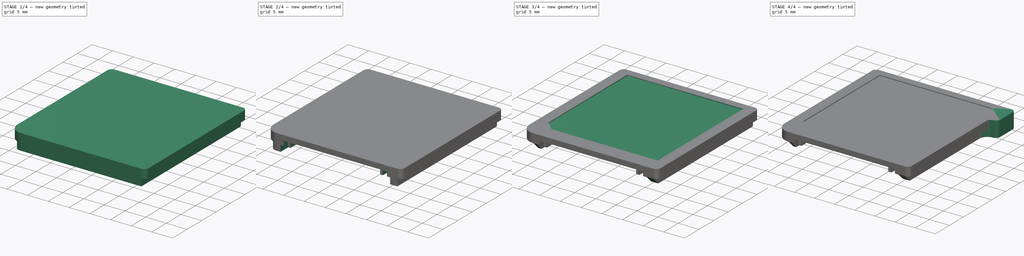
[diagram: build sequence overview — one tinted view per stage of 4, left to right]
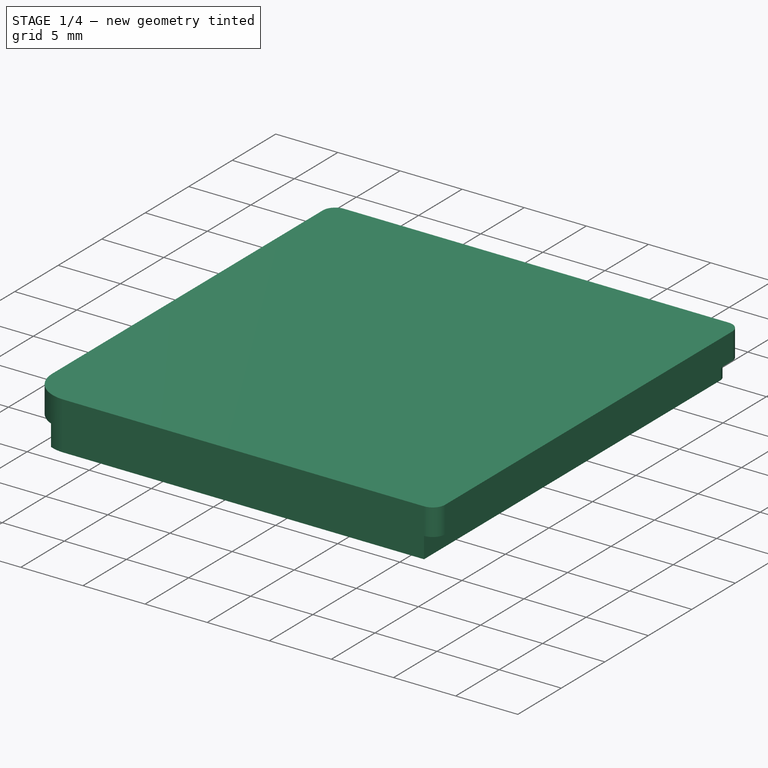
[diagram: stage 1 of 4 — iso view after this stage's code; geometry added in this stage tinted green]
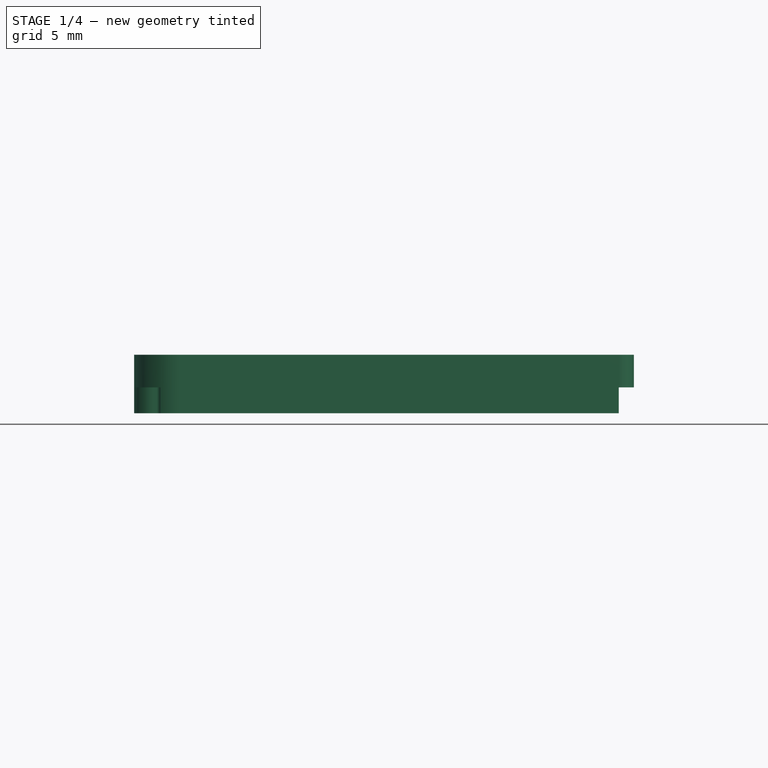
[diagram: stage 1 of 4 — front view after this stage's code; geometry added in this stage tinted green]
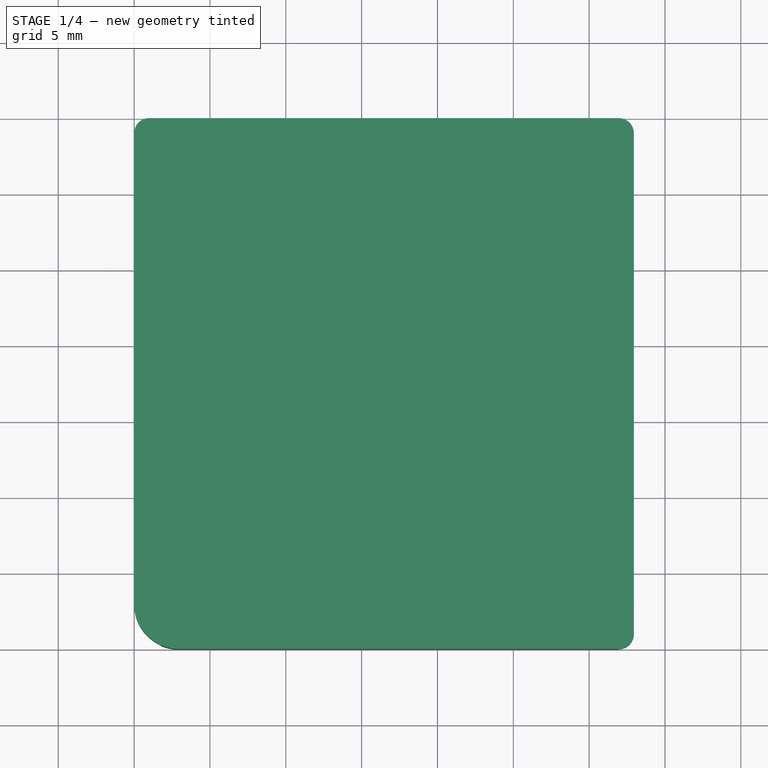
[diagram: stage 1 of 4 — top view after this stage's code; geometry added in this stage tinted green]
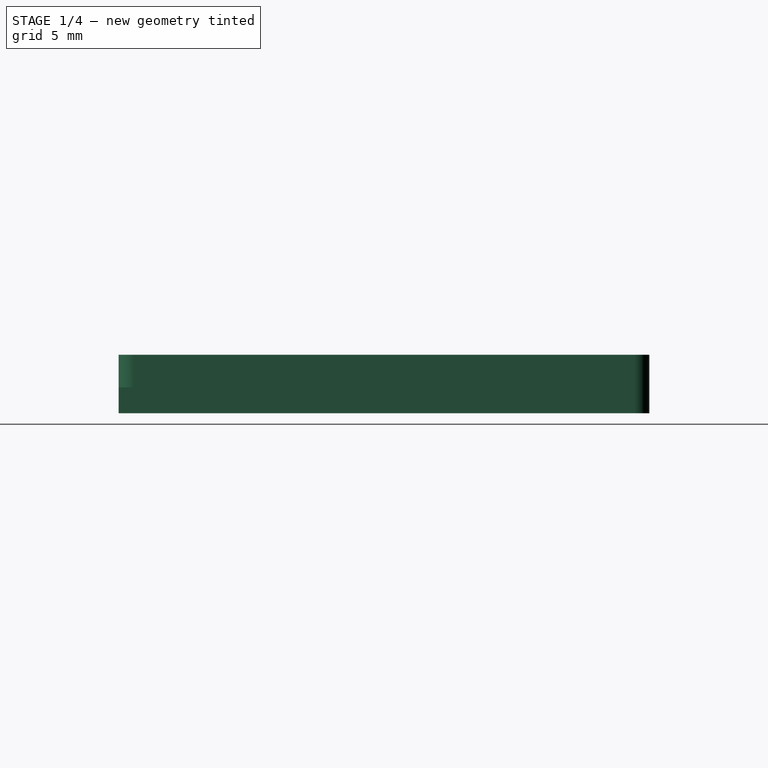
[diagram: stage 1 of 4 — right view after this stage's code; geometry added in this stage tinted green]
FCSTD DOCUMENT  (FreeCAD 0.20R29177 +426 (Git))
Label: Nintendo DS + 3DS Game Shell
License: All rights reserved
LicenseURL: http://en.wikipedia.org/wiki/All_rights_reserved
objects: Sketcher::SketchObject×7, PartDesign::Pocket×5, PartDesign::Pad×2, PartDesign::Body×2, PartDesign::Fillet×1, PartDesign::FeatureBase×1
note: 26 computed .brp shape members not serialized (recipe doc carries the construction recipe); baked Part::Feature solids carry a one-line shape summary decoded from their .brp

FEATURE [Sketcher::SketchObject] Sketch
  FullyConstrained = true
  MapMode = 5
  Support = -> [XY_Plane]
  sketch-geometry (12):
    g0: LineSegment StartX=0 StartY=0 StartZ=0 EndX=32.95 EndY=0 EndZ=0
    g1: LineSegment StartX=32.95 StartY=0 StartZ=0 EndX=32.95 EndY=35 EndZ=0
    g2: LineSegment StartX=32.95 StartY=35 StartZ=0 EndX=0 EndY=35 EndZ=0
    g3: LineSegment StartX=0 StartY=35 StartZ=0 EndX=0 EndY=0 EndZ=0
    g4: LineSegment StartX=1 StartY=35 StartZ=0 EndX=31.95 EndY=35 EndZ=0
    g5: LineSegment StartX=32.95 StartY=34 StartZ=0 EndX=32.95 EndY=1 EndZ=0
    g6: LineSegment StartX=31.95 StartY=0 StartZ=0 EndX=2.95 EndY=0 EndZ=0
    g7: LineSegment StartX=0 StartY=2.95 StartZ=0 EndX=0 EndY=34 EndZ=0
    g8: ArcOfCircle CenterX=2.95 CenterY=2.95 CenterZ=0 NormalX=0 NormalY=0 NormalZ=1 AngleXU=0 Radius=2.95 StartAngle=3.14159 EndAngle=4.71239
    g9: ArcOfCircle CenterX=31.95 CenterY=1 CenterZ=0 NormalX=0 NormalY=0 NormalZ=1 AngleXU=0 Radius=1 StartAngle=4.71239 EndAngle=6.28319
    g10: ArcOfCircle CenterX=31.95 CenterY=34 CenterZ=0 NormalX=0 NormalY=0 NormalZ=1 AngleXU=0 Radius=1 StartAngle=-2.7e-15 EndAngle=1.5708
    g11: ArcOfCircle CenterX=1 CenterY=34 CenterZ=0 NormalX=0 NormalY=0 NormalZ=1 AngleXU=0 Radius=1 StartAngle=1.5708 EndAngle=3.14159
  constraints (31):
    c: Coincident(g0,g1)
    c: Coincident(g1,g2)
    c: Coincident(g2,g3)
    c: Coincident(g3,g0)
    c: Horizontal(g0)
    c: Horizontal(g2)
    c: Vertical(g1)
    c: Vertical(g3)
    c: Coincident(g0,g-1)
    c: Distance(g2) = 32.95
    c: Distance(g1) = 35
    c: Horizontal(g4)
    c: Horizontal(g6)
    c: Vertical(g5)
    c: Vertical(g7)
    c: Tangent(g7,g8) = 1.5708
    c: Tangent(g6,g8) = 1.5708
    c: Tangent(g6,g9) = 1.5708
    c: Tangent(g5,g9) = 1.5708
    c: Tangent(g5,g10) = 1.5708
    c: Tangent(g4,g10) = 1.5708
    c: Tangent(g4,g11) = 1.5708
    c: Tangent(g7,g11) = 1.5708
    c: PointOnObject(g4,g2)
    c: PointOnObject(g5,g1)
    c: PointOnObject(g6,g0)
    c: PointOnObject(g7,g3)
    c: Radius(g10) = 1
    c: Radius(g8) = 2.95
    c: Equal(g11,g10)
    c: Equal(g10,g9)
FEATURE [PartDesign::Pad] Pad
  Direction = (0,0,1)
  Length = 3.85
  Length2 = 10
  Profile = -> Sketch
  ReferenceAxis = -> Sketch [N_Axis]
  Type = 0
FEATURE [Sketcher::SketchObject] Sketch001
  ExternalGeometry = -> [Pad]
  FullyConstrained = true
  MapMode = 5
  Placement = pos=(0,0,0) rot=(1,0,0;3.14159rad)
  Support = -> [Pad]
  sketch-geometry (25):
    g0: LineSegment StartX=31.95 StartY=0 StartZ=0 EndX=2.95 EndY=0 EndZ=0
    g1: LineSegment StartX=32.95 StartY=-34 StartZ=0 EndX=32.95 EndY=-1 EndZ=0
    g2: ArcOfCircle CenterX=31.95 CenterY=-1 CenterZ=0 NormalX=0 NormalY=0 NormalZ=1 AngleXU=0 Radius=1 StartAngle=2e-16 EndAngle=1.5708
    g3: ArcOfCircle CenterX=31.95 CenterY=-34 CenterZ=0 NormalX=0 NormalY=0 NormalZ=1 AngleXU=0 Radius=1 StartAngle=4.71239 EndAngle=6.28319
    g4: LineSegment StartX=31.95 StartY=-34 StartZ=0 EndX=31.95 EndY=0 EndZ=0
    g5: LineSegment StartX=32.95 StartY=-1 StartZ=0 EndX=31.95 EndY=-1 EndZ=0
    g6: LineSegment StartX=31.95 StartY=0 StartZ=0 EndX=31.95 EndY=0 EndZ=0
    g7: LineSegment StartX=31.95 StartY=-35 StartZ=0 EndX=30.95 EndY=-35 EndZ=0
    g8: ArcOfCircle CenterX=30.95 CenterY=-34 CenterZ=0 NormalX=0 NormalY=0 NormalZ=1 AngleXU=0 Radius=1 StartAngle=4.71239 EndAngle=6.28319
    g9: LineSegment StartX=1.75 StartY=-0.255097 StartZ=0 EndX=1.75 EndY=-6.0051 EndZ=0
    g10: LineSegment StartX=0 StartY=-2.95 StartZ=0 EndX=0 EndY=-7.4921 EndZ=0
    g11: LineSegment StartX=0 StartY=-2.95 StartZ=0 EndX=1.75 EndY=-2.95 EndZ=0
    g12: ArcOfCircle CenterX=1.5 CenterY=-6.0051 CenterZ=0 NormalX=0 NormalY=0 NormalZ=1 AngleXU=0 Radius=0.25 StartAngle=4.71239 EndAngle=6.28319
    g13: LineSegment StartX=1.5 StartY=-6.2551 StartZ=0 EndX=1.237 EndY=-6.2551 EndZ=0
    g14: ArcOfCircle CenterX=1.237 CenterY=-7.4921 CenterZ=0 NormalX=0 NormalY=0 NormalZ=1 AngleXU=0 Radius=1.237 StartAngle=1.5708 EndAngle=3.14159
    g15: LineSegment StartX=0 StartY=-7.4921 StartZ=0 EndX=0 EndY=-17.2051 EndZ=0
    g16: LineSegment StartX=1.5 StartY=-6.2551 StartZ=0 EndX=1.5 EndY=-17.2051 EndZ=0
    g17: LineSegment StartX=1.5 StartY=-17.2051 StartZ=0 EndX=0 EndY=-17.2051 EndZ=0
    g18: ArcOfCircle CenterX=1.5 CenterY=-16.9551 CenterZ=0 NormalX=0 NormalY=0 NormalZ=1 AngleXU=0 Radius=0.25 StartAngle=4.71239 EndAngle=6.28319
    g19: LineSegment StartX=1.75 StartY=-16.9551 StartZ=0 EndX=1.75 EndY=-13.9551 EndZ=0
    g20: LineSegment StartX=1.5 StartY=-13.7051 StartZ=0 EndX=1.237 EndY=-13.7051 EndZ=0
    g21: ArcOfCircle CenterX=1.5 CenterY=-13.9551 CenterZ=0 NormalX=0 NormalY=0 NormalZ=1 AngleXU=0 Radius=0.25 StartAngle=1.7e-15 EndAngle=1.5708
    g22: ArcOfCircle CenterX=1.237 CenterY=-12.4681 CenterZ=0 NormalX=0 NormalY=0 NormalZ=1 AngleXU=0 Radius=1.237 StartAngle=3.14159 EndAngle=4.71239
    g23: LineSegment StartX=0 StartY=-17.2051 StartZ=0 EndX=0 EndY=-12.4681 EndZ=0
    g24: ArcOfCircle CenterX=2.95 CenterY=-2.95 CenterZ=0 NormalX=0 NormalY=0 NormalZ=1 AngleXU=0 Radius=2.95 StartAngle=1.98972 EndAngle=3.14159
  constraints (63):
    c: Coincident(g0,g-5)
    c: Coincident(g0,g-3)
    c: Coincident(g1,g-4)
    c: Coincident(g1,g-5)
    c: Coincident(g2,g-5)
    c: Coincident(g2,g1)
    c: Coincident(g2,g0)
    c: Coincident(g3,g-4)
    c: Coincident(g3,g1)
    c: Coincident(g3,g-4)
    c: PointOnObject(g4,g0)
    c: Coincident(g5,g1)
    c: PointOnObject(g5,g4)
    c: Horizontal(g5)
    c: Coincident(g6,g4)
    c: Coincident(g6,g2)
    c: Distance(g5) = 1
    c: Coincident(g7,g3)
    c: Horizontal(g7)
    c: Coincident(g8,g3)
    c: Tangent(g8,g7) = 1.5708
    c: Coincident(g4,g3)
    c: Vertical(g9)
    c: Coincident(g10,g-3)
    c: PointOnObject(g10,g-2)
    c: Coincident(g11,g10)
    c: PointOnObject(g11,g9)
    c: Horizontal(g11)
    c: PointOnObject(g9,g-3)
    c: DistanceY(g9,g9) = 5.75
    c: Horizontal(g13)
    c: Radius(g12) = 0.25
    c: Tangent(g12,g9) = 1.5708
    c: Tangent(g13,g12) = 1.5708
    c: Tangent(g14,g13) = -1.5708
    c: Tangent(g14,g10) = -1.5708
    c: Distance(g13) = 0.263
    c: Coincident(g15,g10)
    c: PointOnObject(g15,g-2)
    c: Coincident(g16,g12)
    c: Vertical(g16)
    c: Distance(g16) = 10.95
    c: Coincident(g17,g16)
    c: Coincident(g17,g15)
    c: Horizontal(g17)
    c: Radius(g18) = 0.25
    c: Tangent(g18,g17) = 1.5708
    c: Vertical(g19)
    c: Horizontal(g20)
    c: Equal(g21,g18)
    c: Tangent(g19,g18) = -1.5708
    c: Tangent(g21,g20) = -1.5708
    c: Tangent(g22,g20) = 1.5708
    c: Tangent(g22,g15) = -1.5708
    c: Coincident(g23,g17)
    c: Coincident(g23,g22)
    c: Equal(g22,g14)
    c: Distance(g19) = 3
    c: Tangent(g21,g19) = -1.5708
    c: Tangent(g8,g4)
    c: Coincident(g24,g-3)
    c: Coincident(g24,g10)
    c: Coincident(g24,g9)
FEATURE [PartDesign::Pocket] Pocket
  BaseFeature = -> Pad
  Direction = (0,0,1)
  Length = 1.7
  Length2 = 5
  Profile = -> Sketch001
  ReferenceAxis = -> Sketch001 [N_Axis]
  Refine = true
  Type = 0
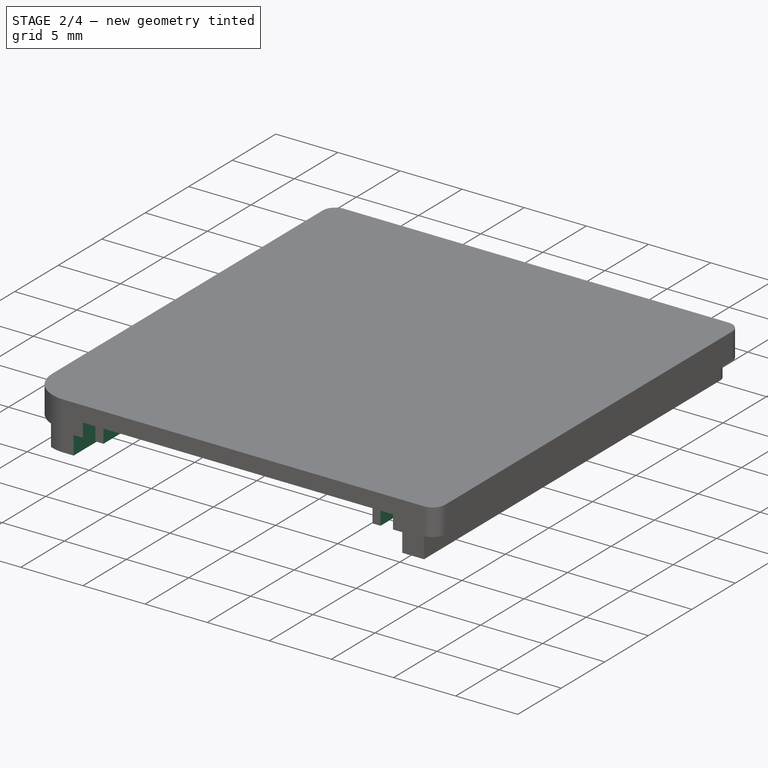
[diagram: stage 2 of 4 — iso view after this stage's code; geometry added in this stage tinted green]
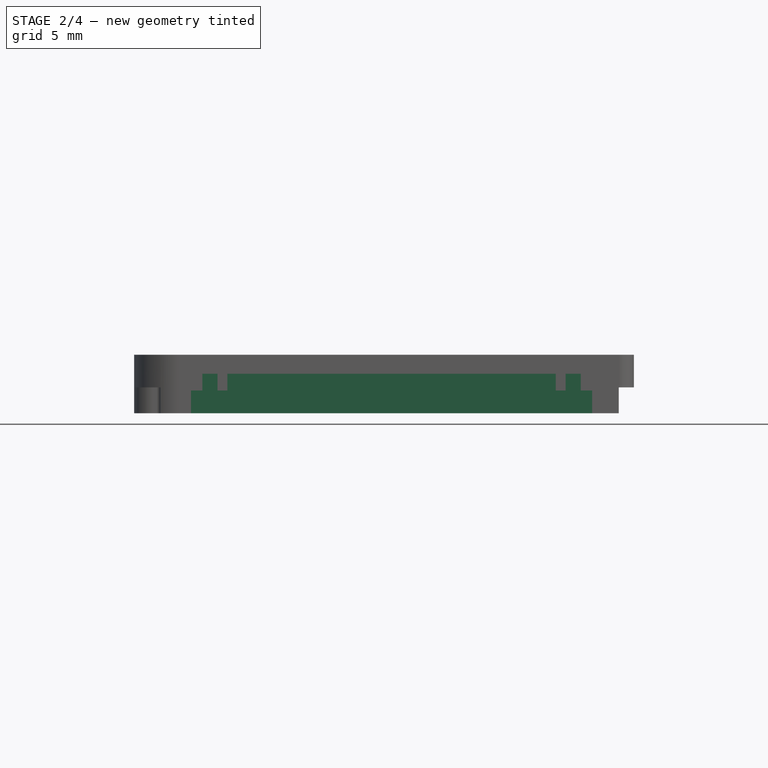
[diagram: stage 2 of 4 — front view after this stage's code; geometry added in this stage tinted green]
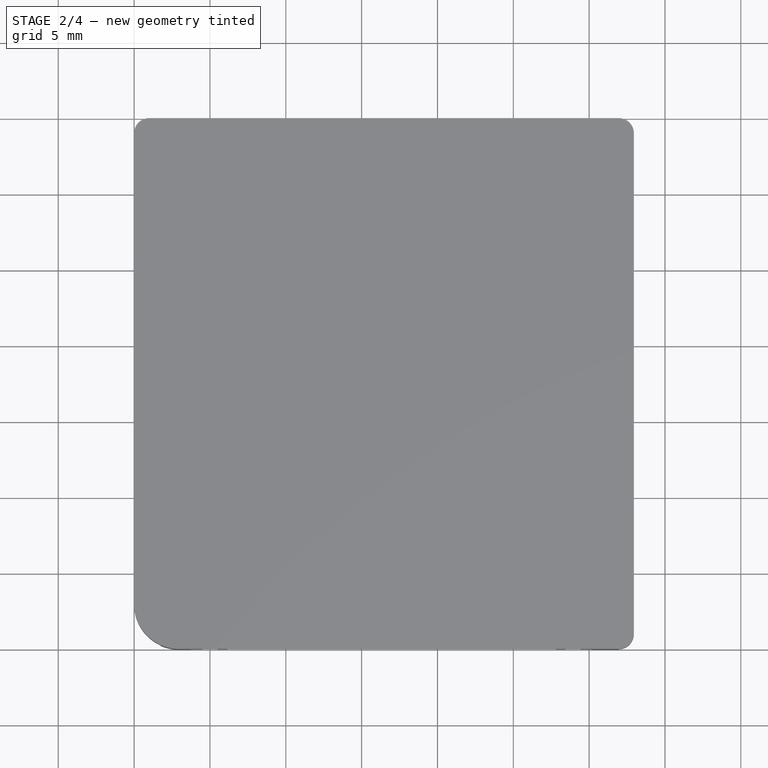
[diagram: stage 2 of 4 — top view after this stage's code; geometry added in this stage tinted green]
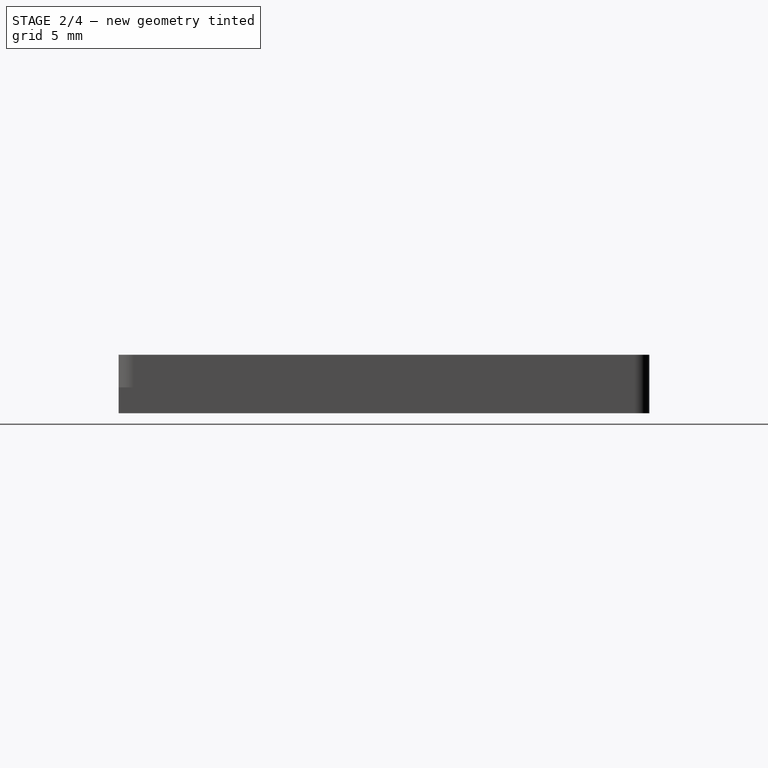
[diagram: stage 2 of 4 — right view after this stage's code; geometry added in this stage tinted green]
FEATURE [Sketcher::SketchObject] Sketch002
  ExternalGeometry = -> [Pocket]
  FullyConstrained = true
  MapMode = 5
  Placement = pos=(0,0,0) rot=(1,0,0;3.14159rad)
  Support = -> [Pocket]
  sketch-geometry (19):
    g0: LineSegment StartX=0 StartY=-2.95 StartZ=0 EndX=4.5 EndY=-2.95 EndZ=0
    g1: ArcOfCircle CenterX=2.95 CenterY=-2.95 CenterZ=0 NormalX=0 NormalY=0 NormalZ=1 AngleXU=0 Radius=2.95 StartAngle=1.5708 EndAngle=3.14159
    g2: LineSegment StartX=4.5 StartY=0 StartZ=0 EndX=4.5 EndY=-9.2 EndZ=0
    g3: LineSegment StartX=29.45 StartY=0 StartZ=0 EndX=29.45 EndY=-9.2 EndZ=0
    g4: LineSegment StartX=29.45 StartY=-9.2 StartZ=0 EndX=4.5 EndY=-9.2 EndZ=0
    g5: LineSegment StartX=4.5 StartY=-9.2 StartZ=0 EndX=5.5 EndY=-9.2 EndZ=0
    g6: LineSegment StartX=5.5 StartY=-9.2 StartZ=0 EndX=5.5 EndY=0 EndZ=0
    g7: LineSegment StartX=5.5 StartY=0 StartZ=0 EndX=4.5 EndY=0 EndZ=0
    g8: LineSegment StartX=29.45 StartY=0 StartZ=0 EndX=28.45 EndY=0 EndZ=0
    g9: LineSegment StartX=28.45 StartY=0 StartZ=0 EndX=28.45 EndY=-9.2 EndZ=0
    g10: LineSegment StartX=28.45 StartY=-9.2 StartZ=0 EndX=29.45 EndY=-9.2 EndZ=0
    g11: LineSegment StartX=6.15 StartY=0 StartZ=0 EndX=27.8 EndY=0 EndZ=0
    g12: LineSegment StartX=27.8 StartY=0 StartZ=0 EndX=27.8 EndY=-9.2 EndZ=0
    g13: LineSegment StartX=27.8 StartY=-9.2 StartZ=0 EndX=6.15 EndY=-9.2 EndZ=0
    g14: LineSegment StartX=6.15 StartY=-9.2 StartZ=0 EndX=6.15 EndY=0 EndZ=0
    g15: LineSegment StartX=27.8 StartY=0 StartZ=0 EndX=28.45 EndY=0 EndZ=0
    g16: LineSegment StartX=6.15 StartY=0 StartZ=0 EndX=5.5 EndY=0 EndZ=0
    g17: LineSegment StartX=2.95 StartY=0 StartZ=0 EndX=4.5 EndY=0 EndZ=0
    g18: LineSegment StartX=32.95 StartY=-1 StartZ=0 EndX=29.45 EndY=-1 EndZ=0
  constraints (53):
    c: Horizontal(g0)
    c: PointOnObject(g1,g-1)
    c: Coincident(g1,g0)
    c: Distance(g0) = 4.5
    c: Vertical(g2)
    c: Vertical(g3)
    c: Coincident(g4,g3)
    c: Coincident(g4,g2)
    c: Horizontal(g4)
    c: PointOnObject(g0,g2)
    c: Distance(g3) = 9.2
    c: Coincident(g5,g2)
    c: PointOnObject(g5,g4)
    c: Coincident(g6,g5)
    c: Vertical(g6)
    c: Coincident(g7,g6)
    c: Coincident(g7,g2)
    c: Coincident(g8,g3)
    c: Coincident(g9,g8)
    c: PointOnObject(g9,g4)
    c: Vertical(g9)
    c: Coincident(g10,g9)
    c: Coincident(g10,g3)
    c: Equal(g10,g5)
    c: Distance(g8) = 1
    c: Coincident(g11,g12)
    c: Coincident(g12,g13)
    c: Coincident(g13,g14)
    c: Coincident(g14,g11)
    c: Horizontal(g11)
    c: Horizontal(g13)
    c: Vertical(g12)
    c: Vertical(g14)
    c: PointOnObject(g12,g4)
    c: Coincident(g15,g11)
    c: Coincident(g15,g8)
    c: Coincident(g16,g11)
    c: Coincident(g16,g6)
    c: Coincident(g17,g1)
    c: Coincident(g17,g2)
    c: Horizontal(g17)
    c: Distance(g16) = 0.65
    c: Horizontal(g7)
    c: Horizontal(g8)
    c: Horizontal(g16)
    c: Equal(g15,g16)
    c: Coincident(g0,g-3)
    c: Coincident(g-3,g1)
    c: Horizontal(g15)
    c: Coincident(g18,g-4)
    c: PointOnObject(g18,g3)
    c: Horizontal(g18)
    c: Distance(g18) = 3.5
FEATURE [PartDesign::Pocket] Pocket001
  BaseFeature = -> Pocket
  Direction = (0,0,1)
  Length = 0
  Length2 = 5
  Offset = 1.25
  Profile = -> Sketch002
  ReferenceAxis = -> Sketch002 [N_Axis]
  Reversed = true
  Type = 3
  UpToFace = -> Pocket [Face6]
FEATURE [Sketcher::SketchObject] Sketch003
  ExternalGeometry = -> [Pocket001]
  FullyConstrained = true
  MapMode = 5
  Placement = pos=(0,0,0) rot=(1,0,0;3.14159rad)
  Support = -> [Pocket001]
  sketch-geometry (12):
    g0: LineSegment StartX=3.75 StartY=0 StartZ=0 EndX=30.2 EndY=0 EndZ=0
    g1: LineSegment StartX=30.2 StartY=0 StartZ=0 EndX=30.2 EndY=-10.45 EndZ=0
    g2: LineSegment StartX=30.2 StartY=-10.45 StartZ=0 EndX=3.75 EndY=-10.45 EndZ=0
    g3: LineSegment StartX=3.75 StartY=-10.45 StartZ=0 EndX=3.75 EndY=0 EndZ=0
    g4: LineSegment StartX=3.75 StartY=-10.45 StartZ=0 EndX=4.5 EndY=-10.45 EndZ=0
    g5: LineSegment StartX=4.5 StartY=-10.45 StartZ=0 EndX=4.5 EndY=-9.2 EndZ=0
    g6: LineSegment StartX=4.5 StartY=-9.2 StartZ=0 EndX=3.75 EndY=-9.2 EndZ=0
    g7: LineSegment StartX=3.75 StartY=-9.2 StartZ=0 EndX=3.75 EndY=-10.45 EndZ=0
    g8: LineSegment StartX=29.45 StartY=-9.2 StartZ=0 EndX=30.2 EndY=-9.2 EndZ=0
    g9: LineSegment StartX=30.2 StartY=-9.2 StartZ=0 EndX=30.2 EndY=-10.45 EndZ=0
    g10: LineSegment StartX=30.2 StartY=-10.45 StartZ=0 EndX=29.45 EndY=-10.45 EndZ=0
    g11: LineSegment StartX=29.45 StartY=-10.45 StartZ=0 EndX=29.45 EndY=-9.2 EndZ=0
  constraints (32):
    c: Coincident(g0,g1)
    c: Coincident(g1,g2)
    c: Coincident(g2,g3)
    c: Coincident(g3,g0)
    c: Horizontal(g0)
    c: Horizontal(g2)
    c: Vertical(g1)
    c: Vertical(g3)
    c: PointOnObject(g0,g-1)
    c: Coincident(g4,g5)
    c: Coincident(g5,g6)
    c: Coincident(g6,g7)
    c: Coincident(g7,g4)
    c: Horizontal(g4)
    c: Horizontal(g6)
    c: Vertical(g5)
    c: Vertical(g7)
    c: Coincident(g4,g2)
    c: Coincident(g5,g-4)
    c: Coincident(g8,g9)
    c: Coincident(g9,g10)
    c: Coincident(g10,g11)
    c: Coincident(g11,g8)
    c: Horizontal(g8)
    c: Horizontal(g10)
    c: Vertical(g9)
    c: Vertical(g11)
    c: Coincident(g8,g-3)
    c: Coincident(g9,g1)
    c: Distance(g11) = 1.25
    c: Distance(g8) = 0.75
    c: Equal(g8,g6)
FEATURE [PartDesign::Pocket] Pocket002
  BaseFeature = -> Pocket001
  Direction = (0,0,1)
  Length = 1.5
  Length2 = 5
  Profile = -> Sketch003
  ReferenceAxis = -> Sketch003 [N_Axis]
  Refine = true
  Type = 0
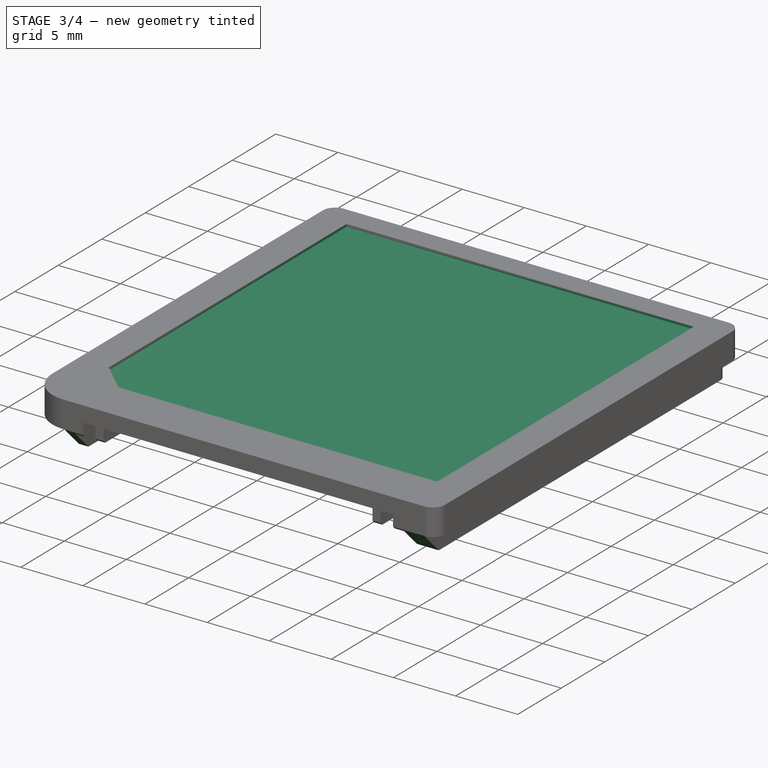
[diagram: stage 3 of 4 — iso view after this stage's code; geometry added in this stage tinted green]
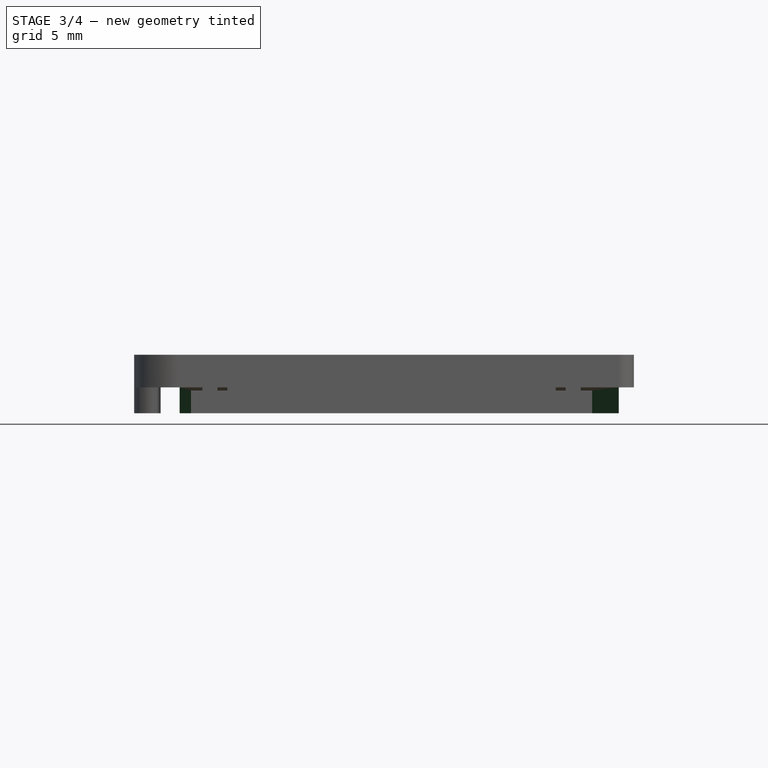
[diagram: stage 3 of 4 — front view after this stage's code; geometry added in this stage tinted green]
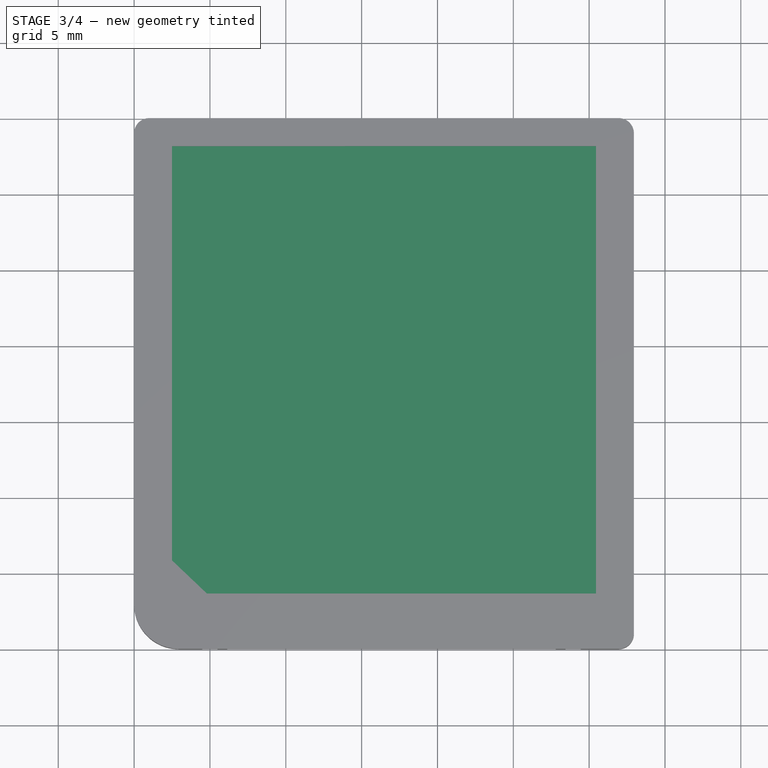
[diagram: stage 3 of 4 — top view after this stage's code; geometry added in this stage tinted green]
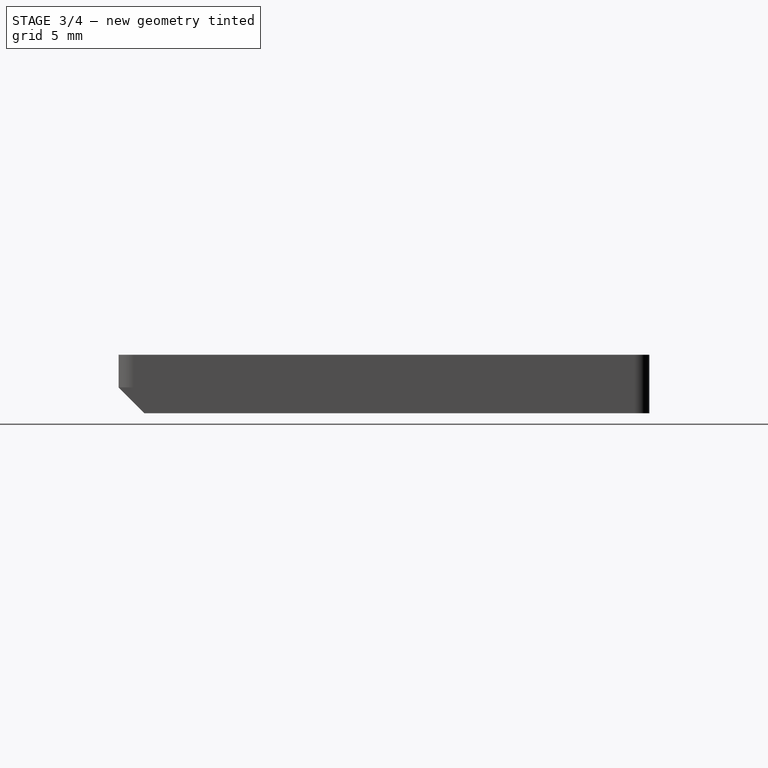
[diagram: stage 3 of 4 — right view after this stage's code; geometry added in this stage tinted green]
FEATURE [Sketcher::SketchObject] Sketch004
  ExternalGeometry = -> [Pocket001]
  FullyConstrained = true
  MapMode = 5
  Placement = pos=(32.95,0,0) rot=(0.57735,0.57735,0.57735;2.0944rad)
  Support = -> [Pocket001]
  sketch-geometry (7):
    g0: LineSegment StartX=0 StartY=0 StartZ=0 EndX=0 EndY=1.7 EndZ=0
    g1: LineSegment StartX=0 StartY=1.7 StartZ=0 EndX=0 EndY=3.85 EndZ=0
    g2: LineSegment StartX=0 StartY=3.85 StartZ=0 EndX=1 EndY=3.85 EndZ=0
    g3: LineSegment StartX=1.7 StartY=0 StartZ=0 EndX=35 EndY=0 EndZ=0
    g4: LineSegment StartX=35 StartY=0 StartZ=0 EndX=35 EndY=3.85 EndZ=0
    g5: LineSegment StartX=0 StartY=1.7 StartZ=0 EndX=1.7 EndY=0 EndZ=0
    g6: LineSegment StartX=0 StartY=0 StartZ=0 EndX=1.7 EndY=0 EndZ=0
  constraints (18):
    c: PointOnObject(g0,g-2)
    c: Coincident(g1,g0)
    c: PointOnObject(g1,g-2)
    c: Coincident(g2,g1)
    c: Coincident(g2,g-3)
    c: Horizontal(g2)
    c: Distance(g1) = 2.15
    c: Horizontal(g3)
    c: Coincident(g4,g3)
    c: Coincident(g4,g-5)
    c: Vertical(g4)
    c: Coincident(g5,g0)
    c: Coincident(g5,g3)
    c: Angle(g0,g5) = 0.785398
    c: Coincident(g0,g-4)
    c: Coincident(g6,g0)
    c: Coincident(g6,g5)
    c: Horizontal(g6)
FEATURE [PartDesign::Pocket] Pocket003
  BaseFeature = -> Pocket002
  Direction = (-1,0,0)
  Length = 300
  Length2 = 5
  Profile = -> Sketch004
  ReferenceAxis = -> Sketch004 [N_Axis]
  Type = 0
FEATURE [PartDesign::Fillet] Fillet
  Base = -> Pocket003 [Edge54]
  BaseFeature = -> Pocket003
  Radius = 1.25
  Refine = true
  SupportTransform = false
  UseAllEdges = false
FEATURE [Sketcher::SketchObject] Sketch005
  ExternalGeometry = -> [Fillet]
  FullyConstrained = true
  MapMode = 5
  Placement = pos=(0,0,3.85) rot=(0,0,1;0rad)
  Support = -> [Fillet]
  sketch-geometry (13):
    g0: LineSegment StartX=2.5 StartY=33.15 StartZ=0 EndX=30.45 EndY=33.15 EndZ=0
    g1: LineSegment StartX=30.45 StartY=33.15 StartZ=0 EndX=30.45 EndY=3.65 EndZ=0
    g2: LineSegment StartX=30.45 StartY=3.65 StartZ=0 EndX=4.8 EndY=3.65 EndZ=0
    g3: LineSegment StartX=4.8 StartY=3.65 StartZ=0 EndX=2.5 EndY=5.835 EndZ=0
    g4: LineSegment StartX=2.5 StartY=5.835 StartZ=0 EndX=2.5 EndY=33.15 EndZ=0
    g5: LineSegment StartX=30.45 StartY=3.65 StartZ=0 EndX=30.45 EndY=0 EndZ=0
    g6: LineSegment StartX=30.45 StartY=33.15 StartZ=0 EndX=32.95 EndY=33.15 EndZ=0
    g7: LineSegment StartX=2.5 StartY=33.15 StartZ=0 EndX=2.5 EndY=35 EndZ=0
    g8: LineSegment StartX=2.5 StartY=5.835 StartZ=0 EndX=0 EndY=5.835 EndZ=0
    g9: LineSegment StartX=2.5 StartY=5.835 StartZ=0 EndX=4.8 EndY=5.835 EndZ=0
    g10: LineSegment StartX=4.8 StartY=5.835 StartZ=0 EndX=4.8 EndY=3.65 EndZ=0
    g11: LineSegment StartX=4.8 StartY=3.65 StartZ=0 EndX=2.5 EndY=3.65 EndZ=0
    g12: LineSegment StartX=2.5 StartY=3.65 StartZ=0 EndX=2.5 EndY=5.835 EndZ=0
  constraints (37):
    c: Horizontal(g0)
    c: Coincident(g1,g0)
    c: Vertical(g1)
    c: Coincident(g2,g1)
    c: Horizontal(g2)
    c: Coincident(g3,g2)
    c: Coincident(g4,g3)
    c: Coincident(g4,g0)
    c: Vertical(g4)
    c: Coincident(g5,g1)
    c: PointOnObject(g5,g-6)
    c: Vertical(g5)
    c: Distance(g5) = 3.65
    c: Coincident(g6,g0)
    c: PointOnObject(g6,g-4)
    c: Horizontal(g6)
    c: Distance(g6) = 2.5
    c: Coincident(g7,g0)
    c: PointOnObject(g7,g-5)
    c: Vertical(g7)
    c: Distance(g7) = 1.85
    c: Coincident(g8,g3)
    c: PointOnObject(g8,g-3)
    c: Horizontal(g8)
    c: Equal(g8,g6)
    c: Coincident(g9,g10)
    c: Coincident(g10,g11)
    c: Coincident(g11,g12)
    c: Coincident(g12,g9)
    c: Horizontal(g9)
    c: Horizontal(g11)
    c: Vertical(g10)
    c: Vertical(g12)
    c: Coincident(g9,g3)
    c: Coincident(g10,g2)
    c: Distance(g10) = 2.185
    c: Distance(g9) = 2.3
FEATURE [PartDesign::Pocket] Pocket004
  BaseFeature = -> Fillet
  Direction = (0,0,-1)
  Length = 0.2
  Length2 = 5
  Profile = -> Sketch005
  ReferenceAxis = -> Sketch005 [N_Axis]
  Refine = true
  Type = 0
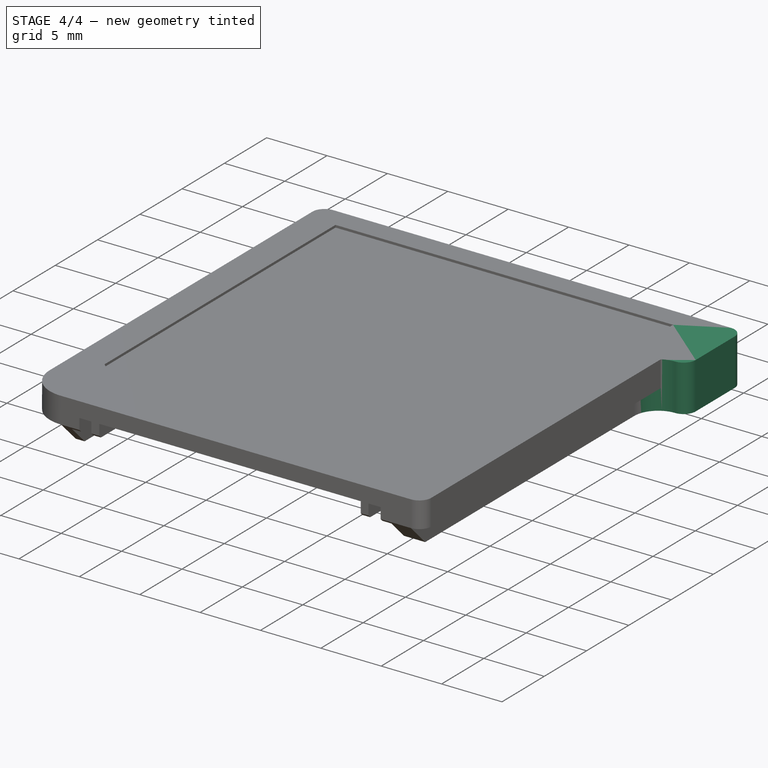
[diagram: stage 4 of 4 — iso view after this stage's code; geometry added in this stage tinted green]
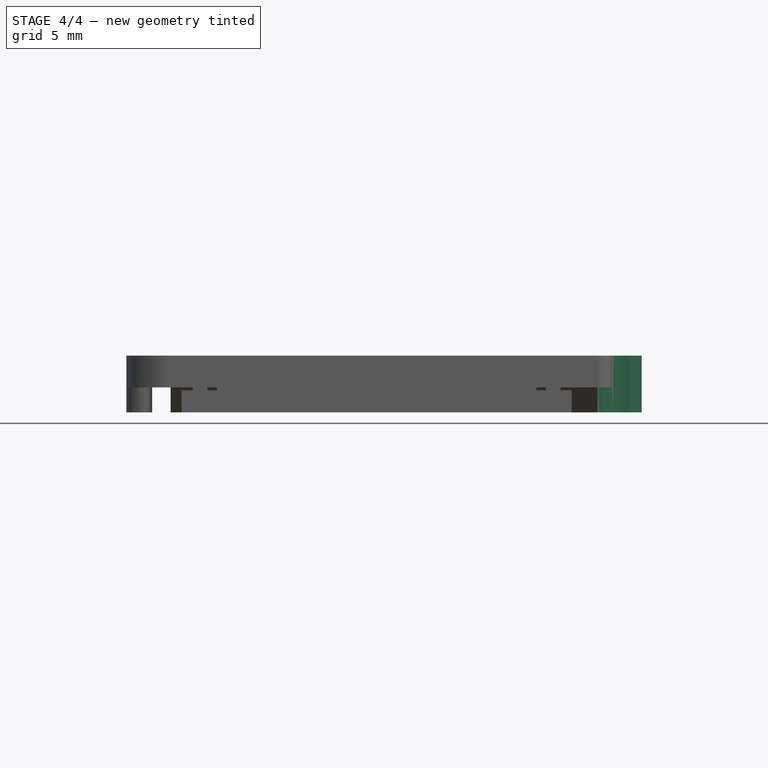
[diagram: stage 4 of 4 — front view after this stage's code; geometry added in this stage tinted green]
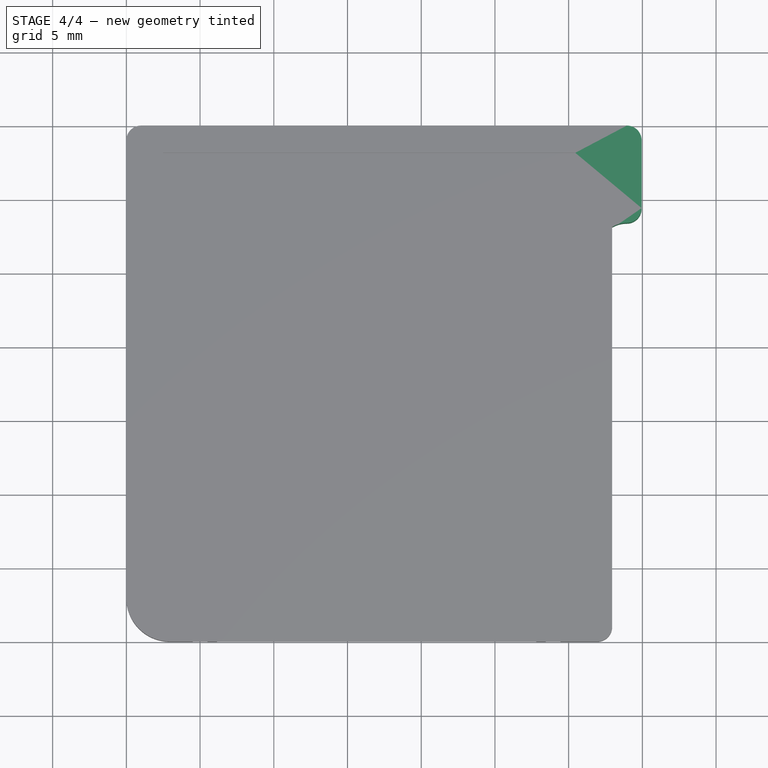
[diagram: stage 4 of 4 — top view after this stage's code; geometry added in this stage tinted green]
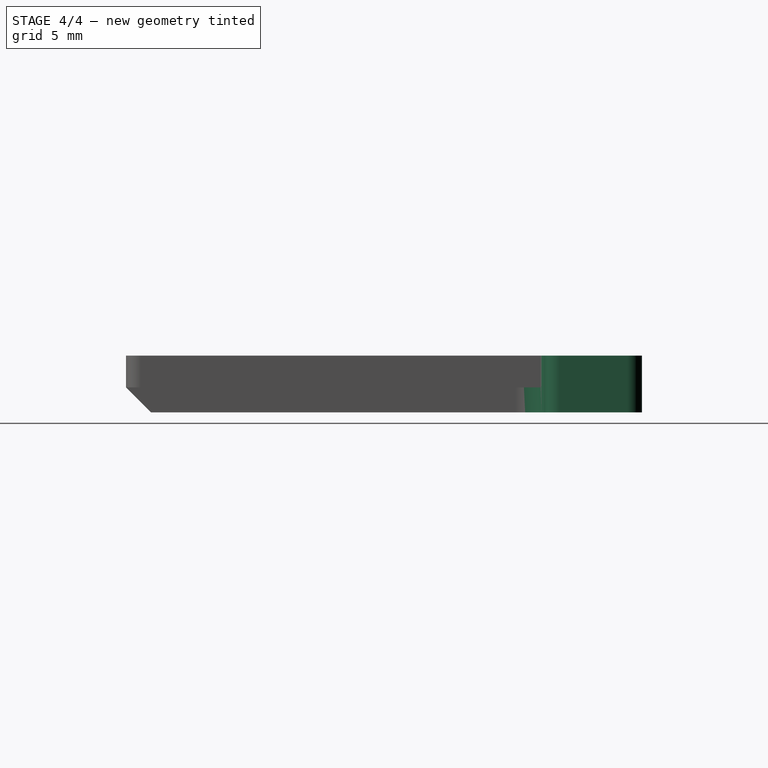
[diagram: stage 4 of 4 — right view after this stage's code; geometry added in this stage tinted green]
FEATURE [PartDesign::Body] Body  label="DS Game Cart"
  Group = -> [Sketch,Pad,Sketch001,Pocket,Sketch002,Pocket001,Sketch003,Pocket002,Sketch004,Pocket003,Fillet,Sketch005,Pocket004]
  Origin = -> Origin
  Tip = -> Pocket004
FEATURE [PartDesign::FeatureBase] Clone
  BaseFeature = -> Pocket004
FEATURE [Sketcher::SketchObject] Sketch006
  ExternalGeometry = -> [Clone]
  FullyConstrained = true
  MapMode = 5
  Placement = pos=(0,0,3.85) rot=(0,0,1;0rad)
  Support = -> [Clone]
  sketch-geometry (9):
    g0: LineSegment StartX=30.45 StartY=33.15 StartZ=0 EndX=34.95 EndY=33.15 EndZ=0
    g1: LineSegment StartX=31.95 StartY=35 StartZ=0 EndX=33.95 EndY=35 EndZ=0
    g2: LineSegment StartX=34.95 StartY=34 StartZ=0 EndX=34.95 EndY=29.4 EndZ=0
    g3: ArcOfCircle CenterX=33.95 CenterY=34 CenterZ=0 NormalX=0 NormalY=0 NormalZ=1 AngleXU=0 Radius=1 StartAngle=-9e-16 EndAngle=1.5708
    g4: ArcOfCircle CenterX=33.95 CenterY=29.4 CenterZ=0 NormalX=0 NormalY=0 NormalZ=1 AngleXU=0 Radius=1 StartAngle=4.71239 EndAngle=6.28319
    g5: ArcOfCircle CenterX=33.95 CenterY=26.4 CenterZ=0 NormalX=0 NormalY=0 NormalZ=1 AngleXU=0 Radius=2 StartAngle=1.5708 EndAngle=3.14159
    g6: LineSegment StartX=31.95 StartY=35 StartZ=0 EndX=30.95 EndY=35 EndZ=0
    g7: LineSegment StartX=30.95 StartY=35 StartZ=0 EndX=30.95 EndY=26.4 EndZ=0
    g8: LineSegment StartX=30.95 StartY=26.4 StartZ=0 EndX=31.95 EndY=26.4 EndZ=0
  constraints (23):
    c: Coincident(g0,g-3)
    c: Horizontal(g0)
    c: Coincident(g1,g-4)
    c: Horizontal(g1)
    c: Vertical(g2)
    c: Tangent(g1,g3) = 1.5708
    c: Tangent(g2,g3) = 1.5708
    c: Radius(g3) = 1
    c: Radius(g5) = 2
    c: Equal(g3,g4)
    c: Tangent(g5,g4) = 1.5708
    c: Tangent(g4,g2) = 1.5708
    c: Distance(g2) = 4.6
    c: PointOnObject(g0,g2)
    c: Distance(g0) = 4.5
    c: Coincident(g6,g1)
    c: Coincident(g6,g-6)
    c: Coincident(g7,g6)
    c: Vertical(g7)
    c: Coincident(g8,g7)
    c: Horizontal(g8)
    c: Coincident(g8,g5)
    c: Tangent(g5,g-5) = -1.5708
FEATURE [PartDesign::Pad] Pad001
  BaseFeature = -> Clone
  Direction = (0,0,1)
  Length = 3.85
  Length2 = 10
  Profile = -> Sketch006
  ReferenceAxis = -> Sketch006 [N_Axis]
  Refine = true
  Reversed = true
  Type = 0
FEATURE [PartDesign::Body] Body001  label="3DS Game Cart"
  Group = -> [Clone,Sketch006,Pad001]
  Origin = -> Origin001
  Placement = pos=(50,0,0) rot=(0,0,1;0rad)
  Tip = -> Pad001
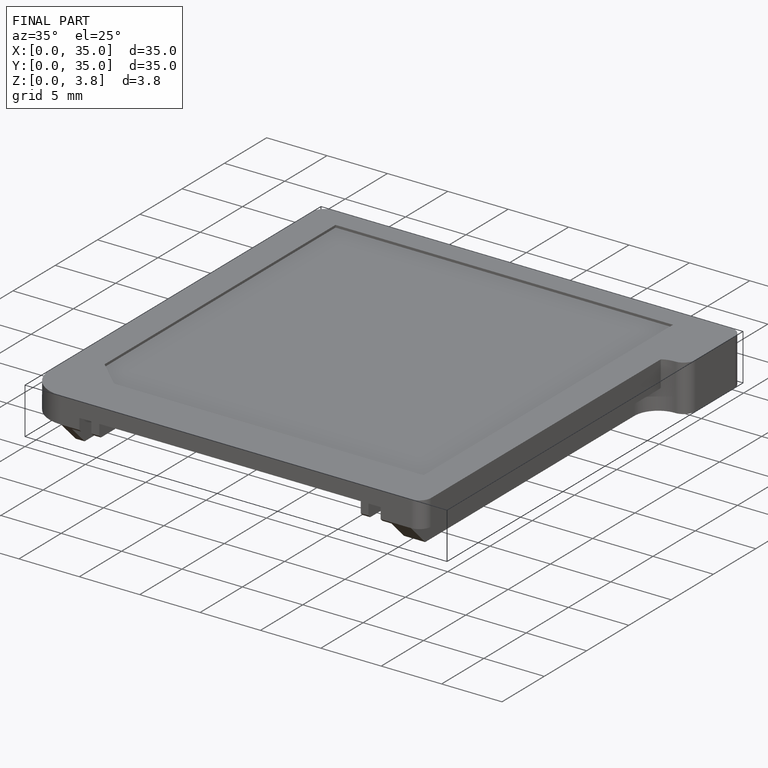
[diagram: finished part — iso view with bounding-box wireframe]
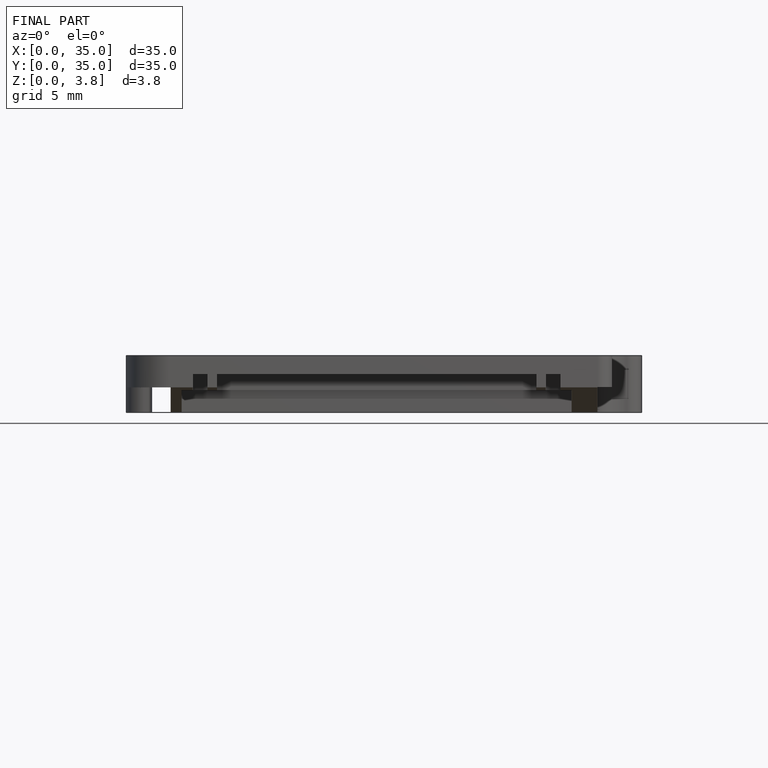
[diagram: finished part — front view with bounding-box wireframe]
